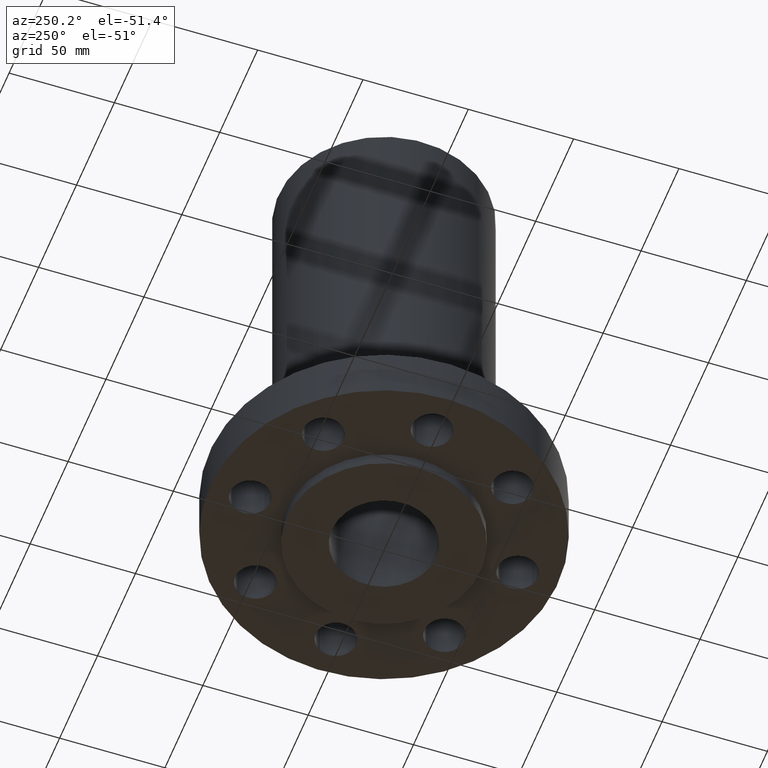
[diagram: clean part render]
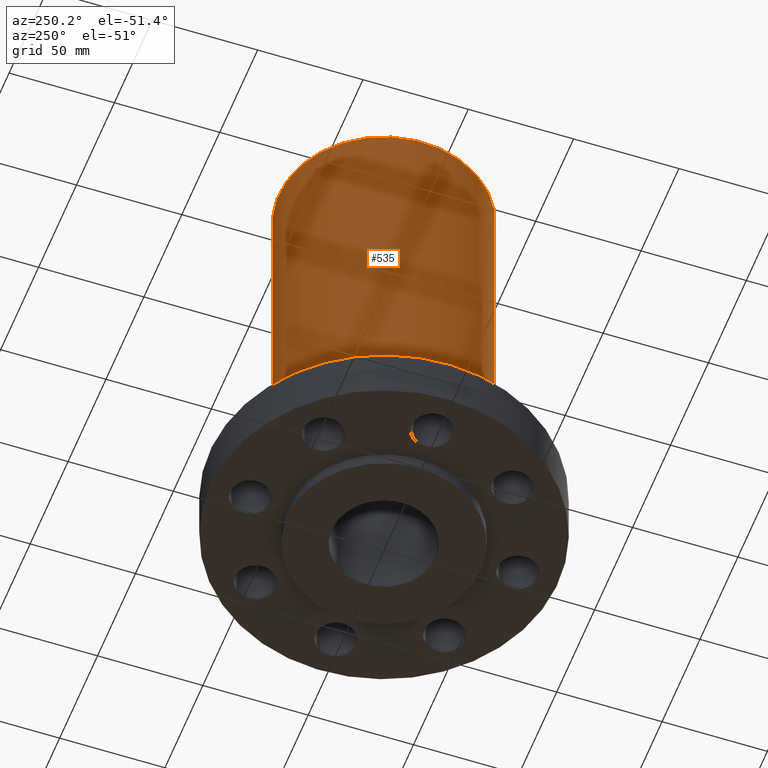
[diagram: same view with one face highlighted and labeled with its STEP entity id]
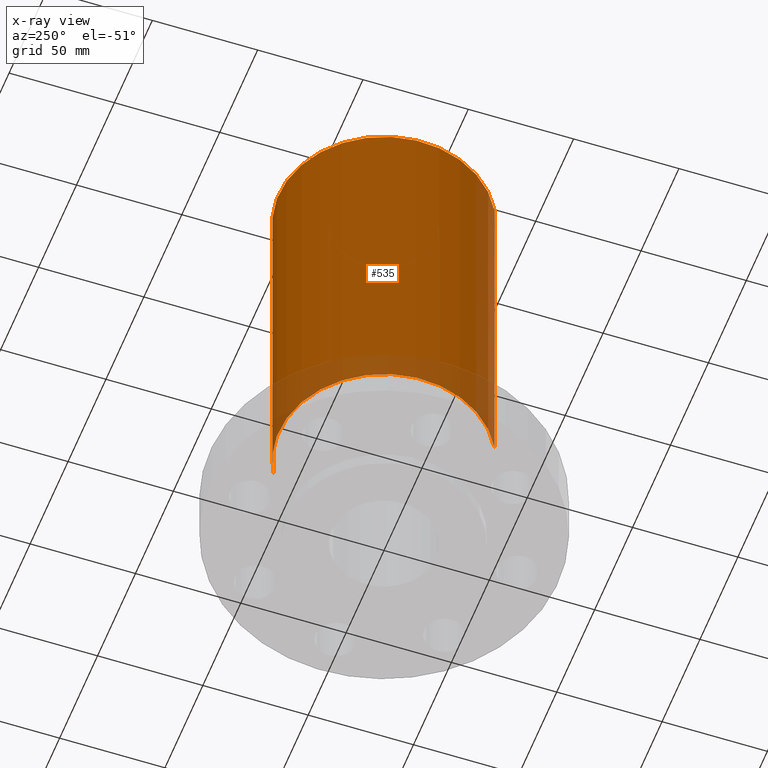
[diagram: x-ray of the same camera — body ghosted, the highlighted face saturated]
A machine part, auxiliary view. The second image highlights one B-rep face of the part: STEP entity #535.
The next image is the same camera in x-ray: the body ghosted, the highlighted face saturated — about 12% of this face is hidden behind the body in this view.
In plain terms, the highlighted cylindrical surface (partial cylindrical patch) has radius 50.038 mm, axis along (0, 0, -1).
Its self-contained STEP definition (entity closure, byte-faithful):
#483=AXIS2_PLACEMENT_3D('Circle Axis2P3D',#481,#482,$) ;
#496=AXIS2_PLACEMENT_3D('Cylinder Axis2P3D',#493,#494,#495) ;
#526=AXIS2_PLACEMENT_3D('Circle Axis2P3D',#524,#525,$) ;
#459=CARTESIAN_POINT('Vertex',(0.944468311054,1.72883764693,2.0618653348)) ;
#466=CARTESIAN_POINT('Vertex',(-0.944468311054,-1.72883764693,2.0618653348)) ;
#481=CARTESIAN_POINT('Axis2P3D Location',(0.,0.,2.0618653348)) ;
#493=CARTESIAN_POINT('Axis2P3D Location',(0.,0.,4.25000000002)) ;
#498=CARTESIAN_POINT('Line Origine',(0.944468311054,1.72883764693,5.40593266742)) ;
#502=CARTESIAN_POINT('Vertex',(0.944468311054,1.72883764693,8.75000000004)) ;
#509=CARTESIAN_POINT('Vertex',(-0.944468311054,-1.72883764693,8.75000000004)) ;
#512=CARTESIAN_POINT('Line Origine',(-0.944468311054,-1.72883764693,5.40593266742)) ;
#524=CARTESIAN_POINT('Axis2P3D Location',(0.,0.,8.75000000003)) ;
#482=DIRECTION('Axis2P3D Direction',(-0.,0.,0.0393700787402)) ;
#494=DIRECTION('Axis2P3D Direction',(0.,0.,-0.0393700787402)) ;
#495=DIRECTION('Axis2P3D XDirection',(-0.0188750212049,-0.0345504945626,0.)) ;
#499=DIRECTION('Vector Direction',(0.,0.,-0.0393700787402)) ;
#513=DIRECTION('Vector Direction',(0.,0.,-0.0393700787402)) ;
#525=DIRECTION('Axis2P3D Direction',(0.,0.,-0.0393700787402)) ;
#500=VECTOR('Line Direction',#499,0.0393700787402) ;
#514=VECTOR('Line Direction',#513,0.0393700787402) ;
#530=ORIENTED_EDGE('',*,*,#485,.F.) ;
#531=ORIENTED_EDGE('',*,*,#516,.T.) ;
#532=ORIENTED_EDGE('',*,*,#528,.T.) ;
#533=ORIENTED_EDGE('',*,*,#504,.F.) ;
#535=ADVANCED_FACE('PartBody',(#534),#497,.T.) ;
#484=CIRCLE('generated circle',#483,1.97000000001) ;
#527=CIRCLE('generated circle',#526,1.97000000001) ;
#497=CYLINDRICAL_SURFACE('generated cylinder',#496,1.97000000001) ;
#485=EDGE_CURVE('',#467,#460,#484,.F.) ;
#504=EDGE_CURVE('',#460,#503,#501,.F.) ;
#516=EDGE_CURVE('',#467,#510,#515,.F.) ;
#528=EDGE_CURVE('',#510,#503,#527,.T.) ;
#529=EDGE_LOOP('',(#530,#531,#532,#533)) ;
#534=FACE_OUTER_BOUND('',#529,.T.) ;
#501=LINE('Line',#498,#500) ;
#515=LINE('Line',#512,#514) ;
#460=VERTEX_POINT('',#459) ;
#467=VERTEX_POINT('',#466) ;
#503=VERTEX_POINT('',#502) ;
#510=VERTEX_POINT('',#509) ;